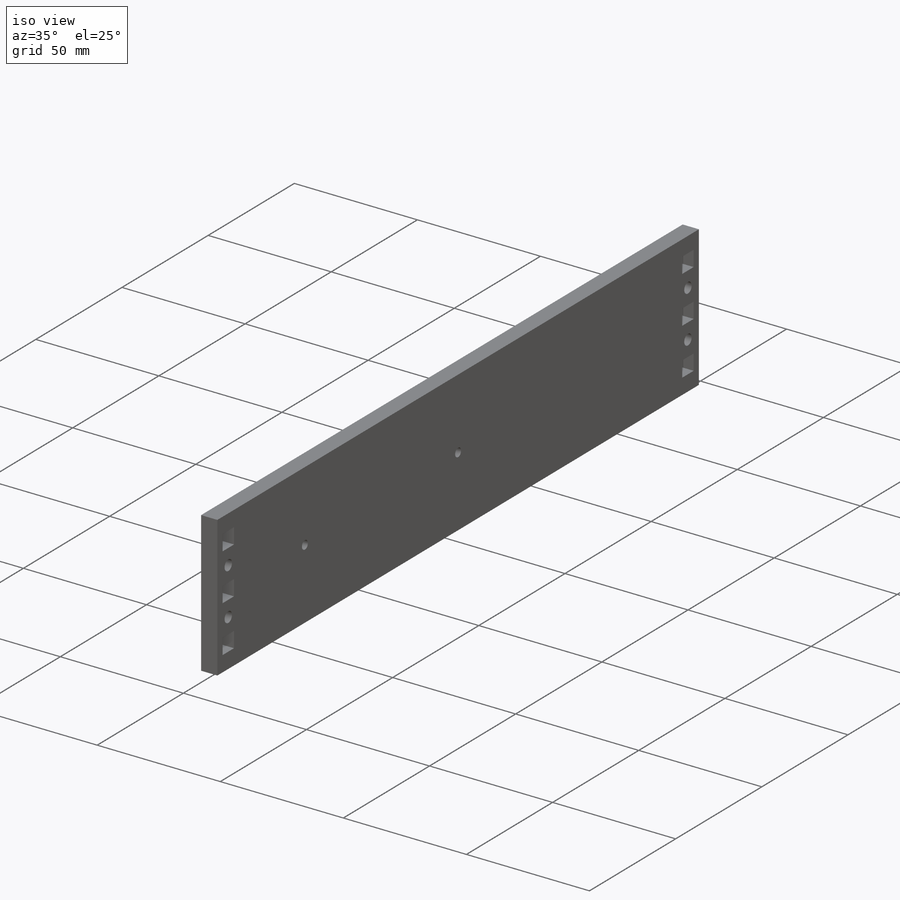
[diagram: iso view]
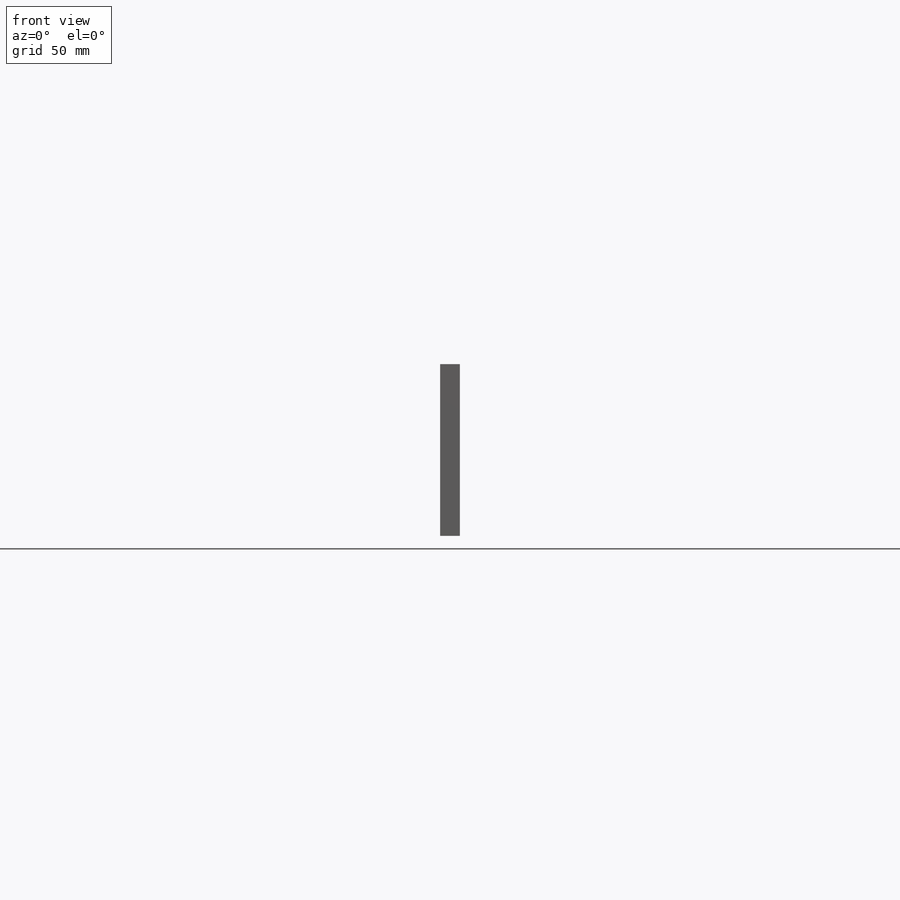
[diagram: front view]
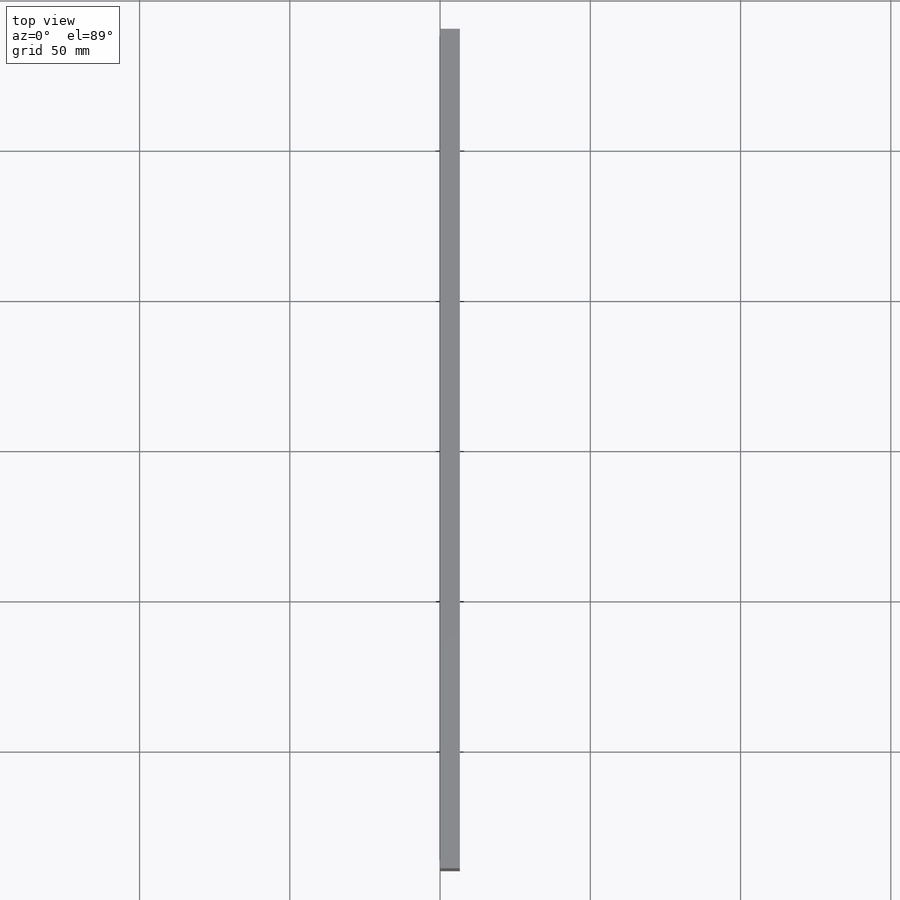
[diagram: top view]
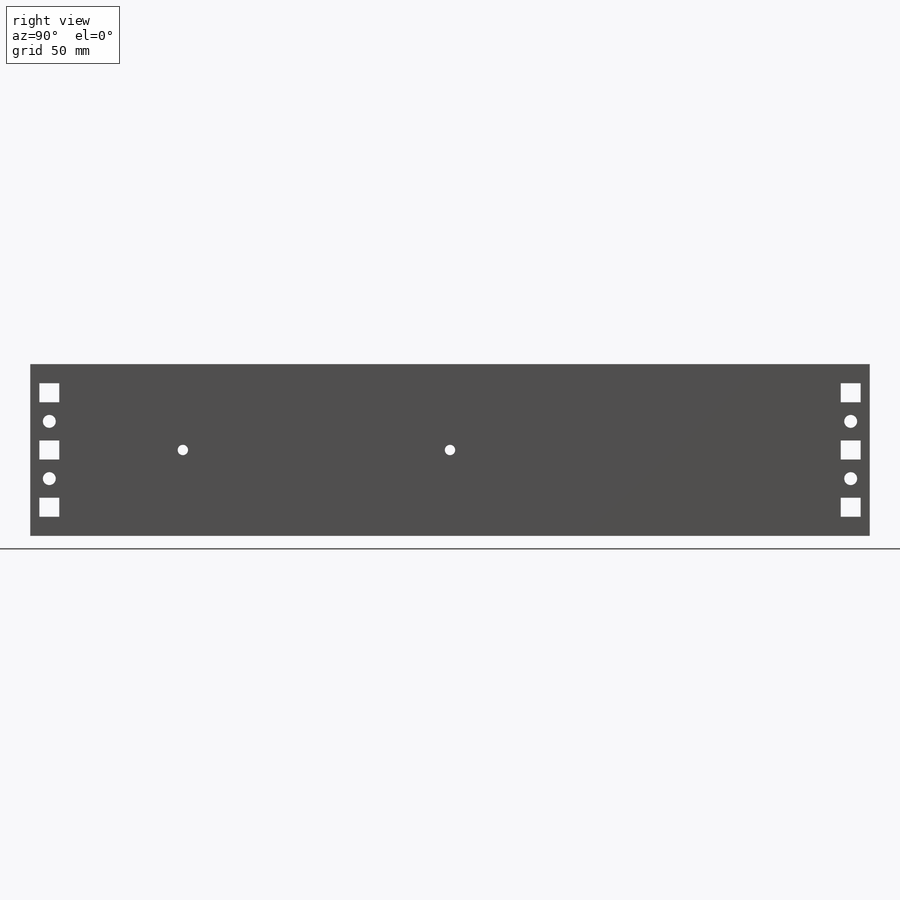
[diagram: right view]
SOLIDWORKS PART (.sldprt)
format: sldprt  version: not decoded by parser v0  size: 471,040 bytes
history: native  units: mm
features: sketch x6, hole x2, material x1, extrude x1 (+12 scaffold rows collapsed)
feature tree (22):
  scaffold x12  (default folders/planes/origin — collapsed)
  material  "Acrylic (BLUE)"
  sketch  "Sketch1"  dims[D1=4.3053mm D2=6.35mm D3=6.604mm D4=12.7mm]
  sketch  "BOLT_HOLE_2X-2"  dims[c1.D1=273.304mm c1.D2=57.15mm c1.D3=6.35mm c1.D4=6.35mm c2.D1=266.7mm]
  extrude  "Boss-Extrude1"  Depth=6.604mm
  hole  "CSK for #8 Flat Head Socket Cap Screw1"  Diameter=4.3053mm Depth=6.604mm
  sketch  "Sketch3"
  sketch  "Sketch2"  dims[hole-wizard template sketch: 59 standard entries collapsed; hole parameters above]
  hole  "#8-32 Tapped Hole1"  Diameter=3.4544mm Depth=10.7188mm
  sketch  "Sketch7"  dims[D1=50.8mm D2=139.7mm D3=88.9mm]
  sketch  "Sketch6"  dims[hole-wizard template sketch: 50 standard entries collapsed; hole parameters kept: c15.D1=0.0508mm]
decode coverage: 8 of 9 modeling features carry decoded parameters
note: ~ marks probable driven/reference dimensions
note: suppression state not decoded; provenance and decode notes live in map.json
